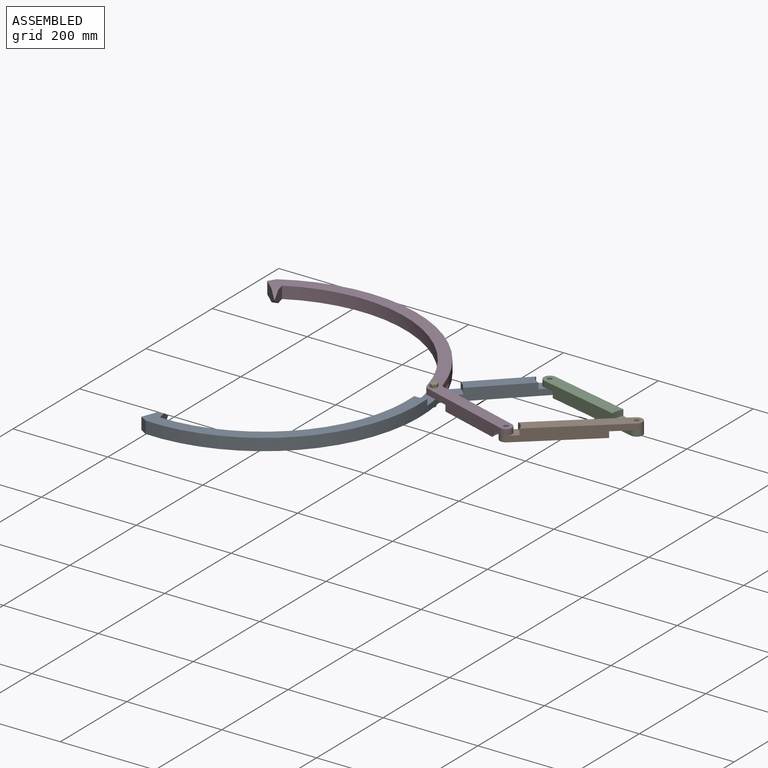
[diagram: assembled view]
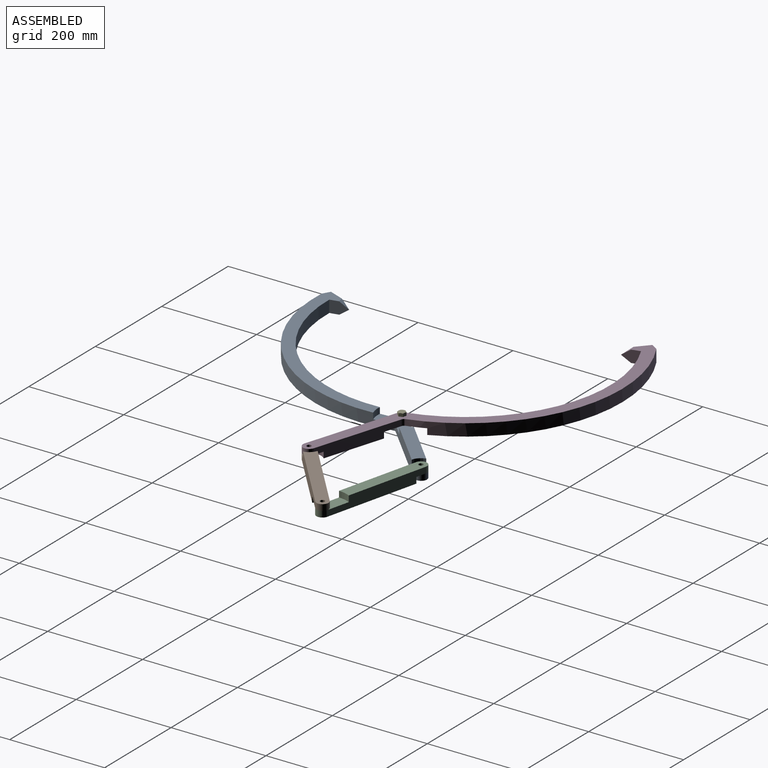
[diagram: assembled view, second angle]
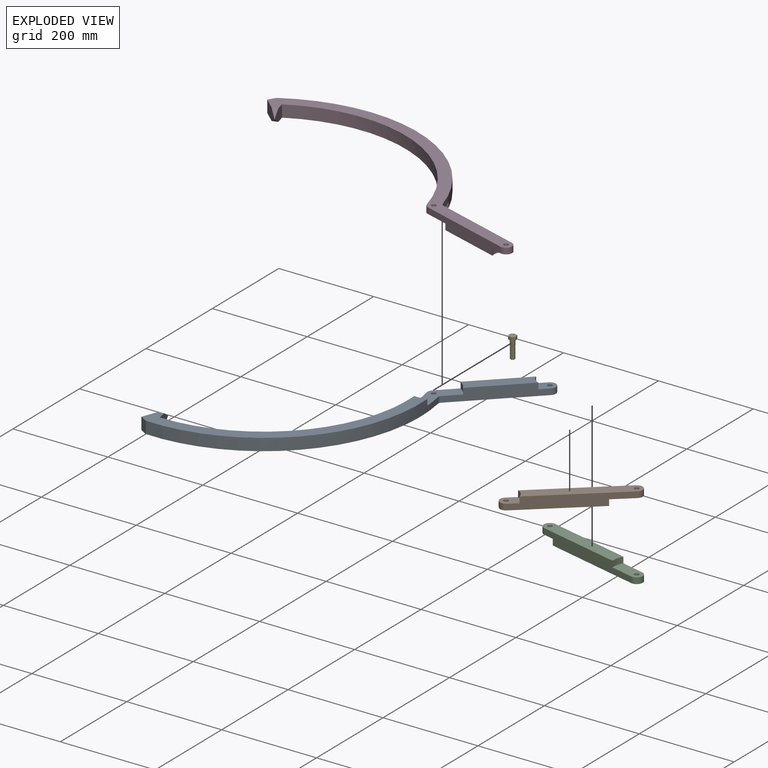
[diagram: exploded view]
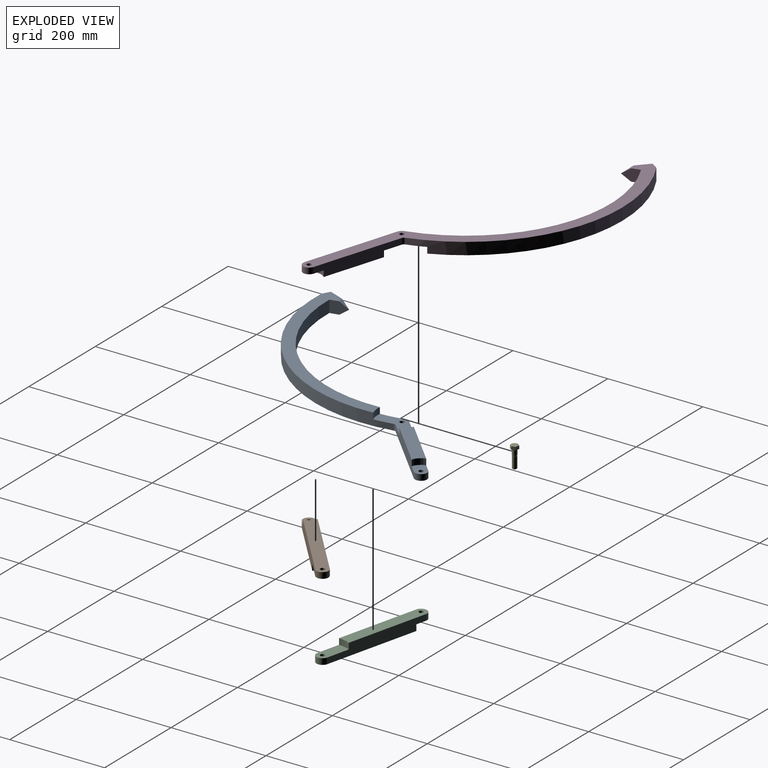
[diagram: exploded view, second angle]
ASSEMBLY  parts=5 mates=5
PART A: 22 faces, bbox 449.9x605.1x25.4 mm
  f0: plane 605.09x449.92mm, normal (0,0,1), area 20700.8mm2, adj f1,f2,f6,f7,f8,f9,f10,f11
  f1: plane 37.1x25.4mm, normal (0,1,0), area 706.8mm2, adj f0,f3,f10,f20,f21
  f2: plane 46.54x30.67mm, normal (0.55,-0.84,0), area 1133.7mm2, adj f0,f3,f9,f20,f21
  f3: plane 428.54x282.16mm, normal (0,0,-1), area 14156.5mm2, adj f1,f2,f8,f9,f10,f16,f20
  f4: plane 87.5x65.01mm, normal (0,0,-1), area 2477.6mm2, adj f6,f7,f8,f10,f11,f12,f15,f16
  f5: plane 38.09x35.08mm, normal (0,0,-1), area 799.3mm2, adj f6,f12,f13,f14,f18
  f6: plane 163.89x101.54mm, normal (-0.85,0.53,0), area 4125.1mm2, adj f0,f4,f5,f7,f14,f17,f18,f19
  f7: cylinder r=6.35mm len=12.7mm, axis (0,0,-1), area 79.4mm2, adj f0,f4,f6,f8
  f8: cylinder r=330.2mm len=419.1mm, axis (0,0,-1), area 14694mm2, adj f0,f3,f4,f7,f9,f16
  f9: plane 25.4x13.08mm, normal (-0.73,-0.68,0), area 454.7mm2, adj f0,f2,f3,f8
  f10: cylinder r=304.8mm len=376.28mm, axis (0,0,-1), area 13381.1mm2, adj f0,f1,f3,f4,f11,f16
  f11: cylinder r=12.7mm len=12.7mm, axis (0,0,-1), area 163.9mm2, adj f0,f4,f10,f12
  f12: plane 172.73x107.02mm, normal (0.85,-0.53,0), area 4257.2mm2, adj f0,f4,f5,f11,f14,f17,f18,f19
  f13: cylinder r=4.76mm len=12.7mm, axis (0,0,-1), area 380mm2, adj f0,f5
  f14: cylinder r=12.7mm len=23.5mm, axis (0,0,-1), area 506.7mm2, adj f0,f5,f6,f12
  f15: cylinder r=4.76mm len=12.7mm, axis (0,0,-1), area 380mm2, adj f0,f4
  f16: cylinder r=50.8mm len=25.4mm, axis (0,0,1), area 327mm2, adj f3,f4,f8,f10
  f17: cylinder r=50.8mm len=21.59mm, axis (0,0,1), area 326mm2, adj f4,f6,f12,f19
  f18: cylinder r=25.4mm len=21.59mm, axis (0,0,1), area 337.8mm2, adj f5,f6,f12,f19
  f19: plane 125.6x91.12mm, normal (0,0,-1), area 3267.4mm2, adj f6,f12,f17,f18
  f20: plane 18.55x12.7mm, normal (0.56,0,-0.83), area 137.4mm2, adj f1,f2,f3
  f21: plane 18.55x12.7mm, normal (0.56,0,0.83), area 137.4mm2, adj f0,f1,f2
PART B: 12 faces, bbox 132.4x225.3x25.4 mm
  f0: plane 38.1x34.28mm, normal (0,0,1), area 799.3mm2, adj f2,f3,f4,f5,f8
  f1: cylinder r=50.8mm len=22.39mm, axis (0,0,1), area 326mm2, adj f2,f4,f6,f11
  f2: plane 199.86x107.02mm, normal (-0.88,-0.47,0), area 4854.3mm2, adj f0,f1,f3,f6,f7,f8,f10,f11
  f3: cylinder r=12.7mm len=23.9mm, axis (0,0,1), area 506.7mm2, adj f0,f2,f4,f6
  f4: plane 199.86x107.02mm, normal (0.88,0.47,0), area 4854.3mm2, adj f0,f1,f3,f6,f7,f8,f10,f11
  f5: cylinder r=4.76mm len=12.7mm, axis (0,0,1), area 380mm2, adj f0,f6
  f6: plane 175.19x107.7mm, normal (0,0,-1), area 4663.7mm2, adj f1,f2,f3,f4,f5
  f7: cylinder r=12.7mm len=23.9mm, axis (0,0,-1), area 506.7mm2, adj f2,f4,f10,f11
  f8: cylinder r=25.4mm len=22.39mm, axis (0,0,-1), area 337.8mm2, adj f0,f2,f4,f10
  f9: cylinder r=4.76mm len=12.7mm, axis (0,0,-1), area 380mm2, adj f10,f11
  f10: plane 199.16x120.53mm, normal (0,0,1), area 5323.3mm2, adj f2,f4,f7,f8,f9
  f11: plane 62.06x47.12mm, normal (0,0,-1), area 1458.8mm2, adj f1,f2,f4,f7,f9
PART C: same geometry as B
PART D: same geometry as A
PART E: 16 faces, bbox 16.5x16.5x45.2 mm
  f0: cone r=4.33mm half-angle=45deg, axis (0,0,1), area 33.1mm2, adj f1,f15
  f1: cylinder r=4.76mm len=24.54mm, axis (0,0,-1), area 734.3mm2, adj f0,f14
  f2: cone r=4.6mm half-angle=37.7deg, axis (0,0,1), area 31.4mm2, adj f3,f14
  f3: cylinder r=4.93mm len=11.34mm, axis (0,0,-1), area 351.1mm2, adj f2,f4
  f4: torus R=5.43mm, axis (0,0,-1), area 25.2mm2, adj f3,f13
  f5: cone r=7.7mm half-angle=60deg, axis (0,0,-1), area 19.6mm2, adj f6,f7,f8,f9,f10,f11,f12
  f6: plane 8.26x7.1mm, normal (0,-1,0), area 54.3mm2, adj f5,f7,f11,f13
  f7: plane 7.15x7.1mm, normal (0.87,-0.5,0), area 54.3mm2, adj f5,f6,f8,f13
  f8: plane 7.15x7.1mm, normal (0.87,0.5,0), area 54.3mm2, adj f5,f7,f9,f13
  f9: plane 8.26x6.9mm, normal (0,1,0), area 54.3mm2, adj f5,f8,f10,f13
  f10: plane 7.15x7.1mm, normal (-0.87,0.5,0), area 54.3mm2, adj f5,f9,f11,f13
  f11: plane 7.15x7.1mm, normal (-0.87,-0.5,0), area 54.3mm2, adj f5,f6,f10,f13
  f12: plane 14.28x14.28mm, normal (0,0,1), area 160mm2, adj f5
  f13: plane 16.51x14.3mm, normal (0,0,-1), area 84.5mm2, adj f4,f6,f7,f8,f9,f10,f11
  f14: plane 9.53x9.53mm, normal (0,0,1), area 14.2mm2, adj f1,f2
  f15: plane 7.81x7.81mm, normal (0,0,-1), area 47.9mm2, adj f0
PLACE A rot(axis=(-0.63,-0.78,0),180deg) t=(-817.13,522.37,723.79)mm
PLACE B rot(axis=(0,0,-1),77.3deg) t=(-814.77,528.3,723.79)mm
PLACE C rot(axis=(-0.61,-0.79,0),180deg) t=(-809.54,506.72,723.79)mm
PLACE D rot(axis=(0,0,-1),75.3deg) t=(-814.35,510.91,723.79)mm
PLACE E rot(axis=(0,0,-1),10deg) t=(-507.23,591.42,736.99)mm fixed
MATE revolute D.f11 <-> A.f11  axis (0,0,-1) through (-507.23,591.42,723.79)mm
MATE revolute D.f13 <-> B.f3  axis (0,0,-1) through (-313,531.7,723.79)mm
MATE revolute A.f13 <-> C.f3  axis (0,0,1) through (-361.9,733.44,723.79)mm
MATE revolute D.f11 <-> E.f4  axis (0,0,1) through (-507.23,591.42,736.49)mm
MATE revolute B.f1 <-> C.f1  axis (0,0,-1) through (-141.57,680.05,723.79)mm
